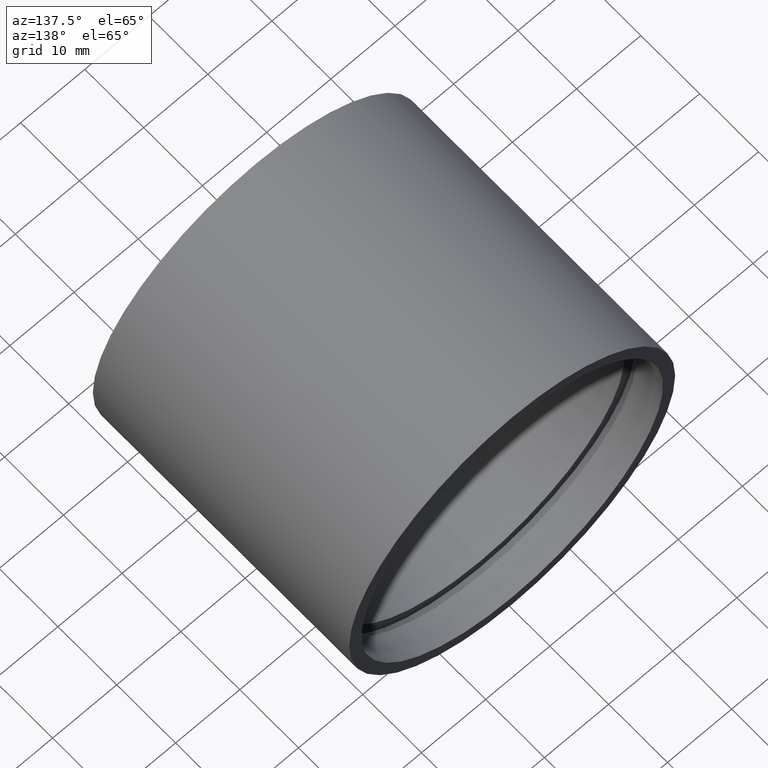
[diagram: clean part render]
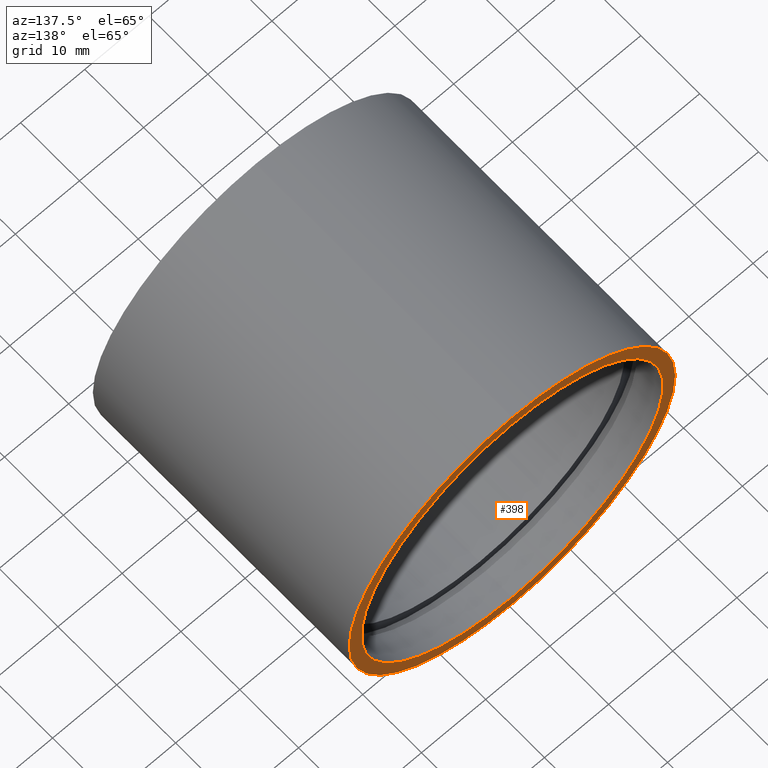
[diagram: same view with one face highlighted and labeled with its STEP entity id]
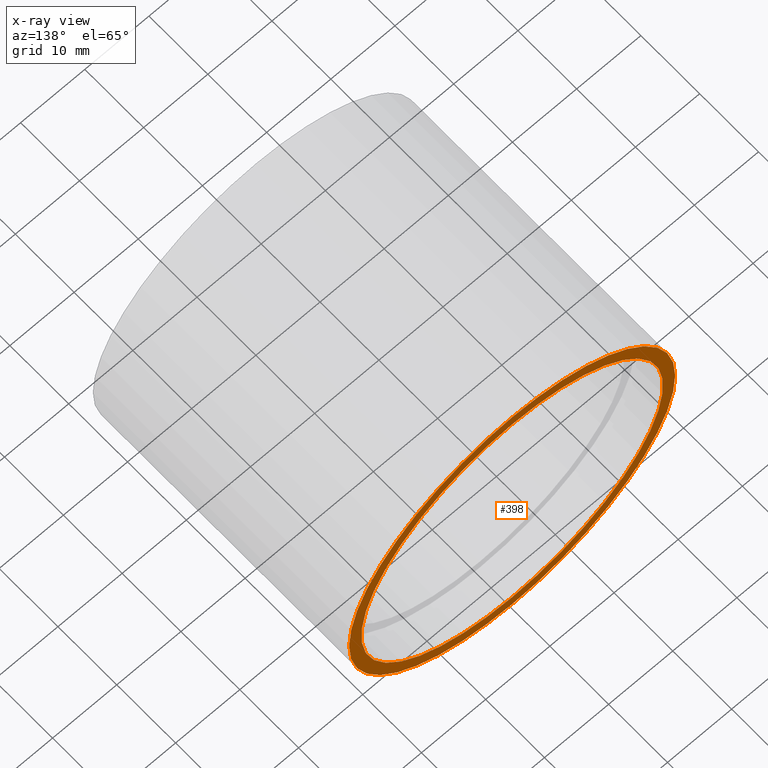
[diagram: x-ray of the same camera — body ghosted, the highlighted face saturated]
A machine part, auxiliary view. The second image highlights one B-rep face of the part: STEP entity #398.
The next image is the same camera in x-ray: the body ghosted, the highlighted face saturated — about 0% of this face is hidden behind the body in this view.
In plain terms, the highlighted planar face has unit normal (0, -1, 0).
Its self-contained STEP definition (entity closure, byte-faithful):
#5 = VERTEX_POINT ( 'NONE', #173 ) ;
#10 = AXIS2_PLACEMENT_3D ( 'NONE', #372, #60, #527 ) ;
#15 = DIRECTION ( 'NONE',  ( -0.0000000000000000000, 1.000000000000000000, -0.0000000000000000000 ) ) ;
#22 = ORIENTED_EDGE ( 'NONE', *, *, #244, .T. ) ;
#51 = EDGE_LOOP ( 'NONE', ( #191, #606 ) ) ;
#59 = VERTEX_POINT ( 'NONE', #396 ) ;
#60 = DIRECTION ( 'NONE',  ( -0.0000000000000000000, 1.000000000000000000, -0.0000000000000000000 ) ) ;
#86 = CIRCLE ( 'NONE', #10, 25.40000000000002000 ) ;
#109 = CARTESIAN_POINT ( 'NONE',  ( 0.0000000000000000000, 43.59999999999998700, 0.0000000000000000000 ) ) ;
#112 = CARTESIAN_POINT ( 'NONE',  ( 2.877919977996282700E-015, 43.59999999999998700, -23.50000000000002100 ) ) ;
#115 = AXIS2_PLACEMENT_3D ( 'NONE', #109, #15, #280 ) ;
#168 = ORIENTED_EDGE ( 'NONE', *, *, #517, .T. ) ;
#173 = CARTESIAN_POINT ( 'NONE',  ( 0.0000000000000000000, 43.59999999999998700, 25.40000000000002000 ) ) ;
#191 = ORIENTED_EDGE ( 'NONE', *, *, #310, .F. ) ;
#240 = CARTESIAN_POINT ( 'NONE',  ( 3.110602869834279600E-015, 43.59999999999998700, -25.40000000000002300 ) ) ;
#244 = EDGE_CURVE ( 'NONE', #5, #624, #86, .T. ) ;
#280 = DIRECTION ( 'NONE',  ( 0.0000000000000000000, 0.0000000000000000000, 1.000000000000000000 ) ) ;
#310 = EDGE_CURVE ( 'NONE', #59, #339, #577, .T. ) ;
#339 = VERTEX_POINT ( 'NONE', #112 ) ;
#342 = CARTESIAN_POINT ( 'NONE',  ( 0.0000000000000000000, 43.59999999999998700, 0.0000000000000000000 ) ) ;
#370 = FACE_BOUND ( 'NONE', #51, .T. ) ;
#372 = CARTESIAN_POINT ( 'NONE',  ( 0.0000000000000000000, 43.59999999999998700, 0.0000000000000000000 ) ) ;
#375 = CIRCLE ( 'NONE', #402, 25.40000000000002000 ) ;
#380 = DIRECTION ( 'NONE',  ( 0.0000000000000000000, 0.0000000000000000000, 1.000000000000000000 ) ) ;
#385 = AXIS2_PLACEMENT_3D ( 'NONE', #525, #429, #380 ) ;
#386 = FACE_OUTER_BOUND ( 'NONE', #562, .T. ) ;
#387 = PLANE ( 'NONE',  #430 ) ;
#396 = CARTESIAN_POINT ( 'NONE',  ( 0.0000000000000000000, 43.59999999999998700, 23.50000000000002100 ) ) ;
#398 = ADVANCED_FACE ( 'NONE', ( #370, #386 ), #387, .F. ) ;
#402 = AXIS2_PLACEMENT_3D ( 'NONE', #342, #610, #553 ) ;
#429 = DIRECTION ( 'NONE',  ( -0.0000000000000000000, 1.000000000000000000, -0.0000000000000000000 ) ) ;
#430 = AXIS2_PLACEMENT_3D ( 'NONE', #483, #540, #485 ) ;
#483 = CARTESIAN_POINT ( 'NONE',  ( 23.50000000000002100, 43.59999999999998700, 0.0000000000000000000 ) ) ;
#485 = DIRECTION ( 'NONE',  ( 0.0000000000000000000, -0.0000000000000000000, -1.000000000000000000 ) ) ;
#517 = EDGE_CURVE ( 'NONE', #624, #5, #375, .T. ) ;
#525 = CARTESIAN_POINT ( 'NONE',  ( 0.0000000000000000000, 43.59999999999998700, 0.0000000000000000000 ) ) ;
#527 = DIRECTION ( 'NONE',  ( 0.0000000000000000000, 0.0000000000000000000, 1.000000000000000000 ) ) ;
#540 = DIRECTION ( 'NONE',  ( 0.0000000000000000000, -1.000000000000000000, 0.0000000000000000000 ) ) ;
#553 = DIRECTION ( 'NONE',  ( 0.0000000000000000000, 0.0000000000000000000, 1.000000000000000000 ) ) ;
#562 = EDGE_LOOP ( 'NONE', ( #22, #168 ) ) ;
#577 = CIRCLE ( 'NONE', #115, 23.50000000000002100 ) ;
#582 = CIRCLE ( 'NONE', #385, 23.50000000000002100 ) ;
#606 = ORIENTED_EDGE ( 'NONE', *, *, #621, .F. ) ;
#610 = DIRECTION ( 'NONE',  ( -0.0000000000000000000, 1.000000000000000000, -0.0000000000000000000 ) ) ;
#621 = EDGE_CURVE ( 'NONE', #339, #59, #582, .T. ) ;
#624 = VERTEX_POINT ( 'NONE', #240 ) ;